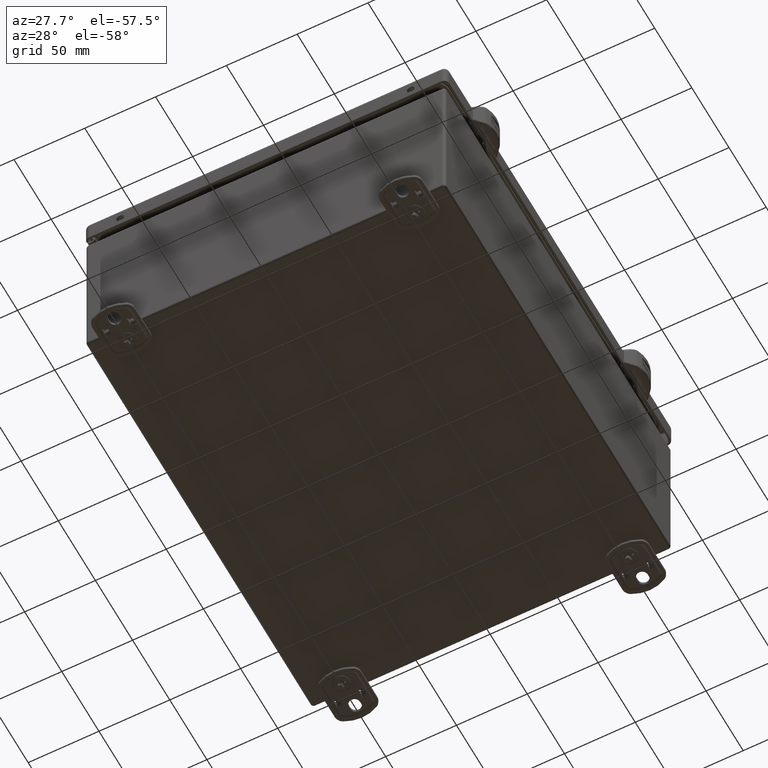
[diagram: clean part render]
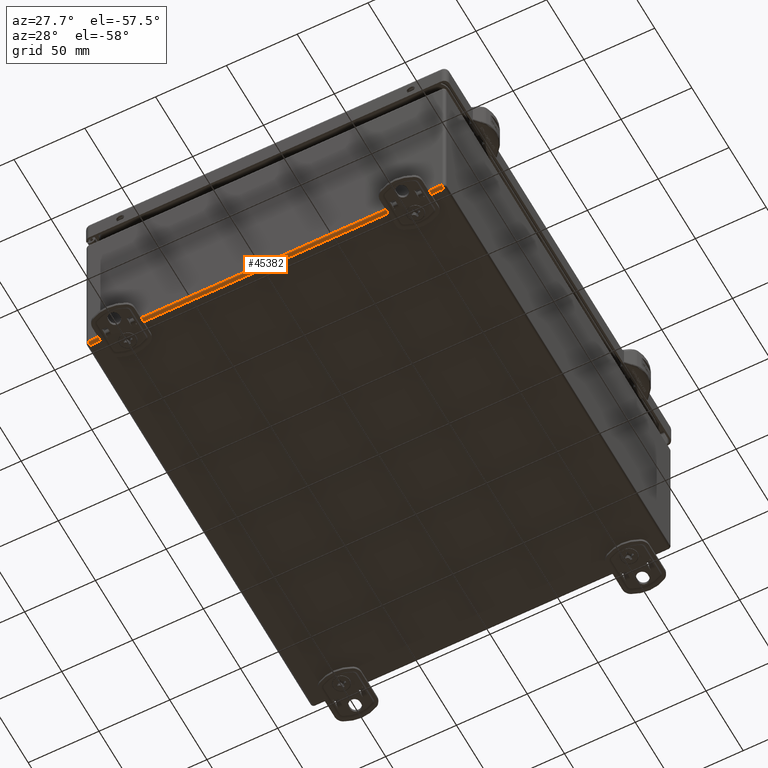
[diagram: same view with one face highlighted and labeled with its STEP entity id]
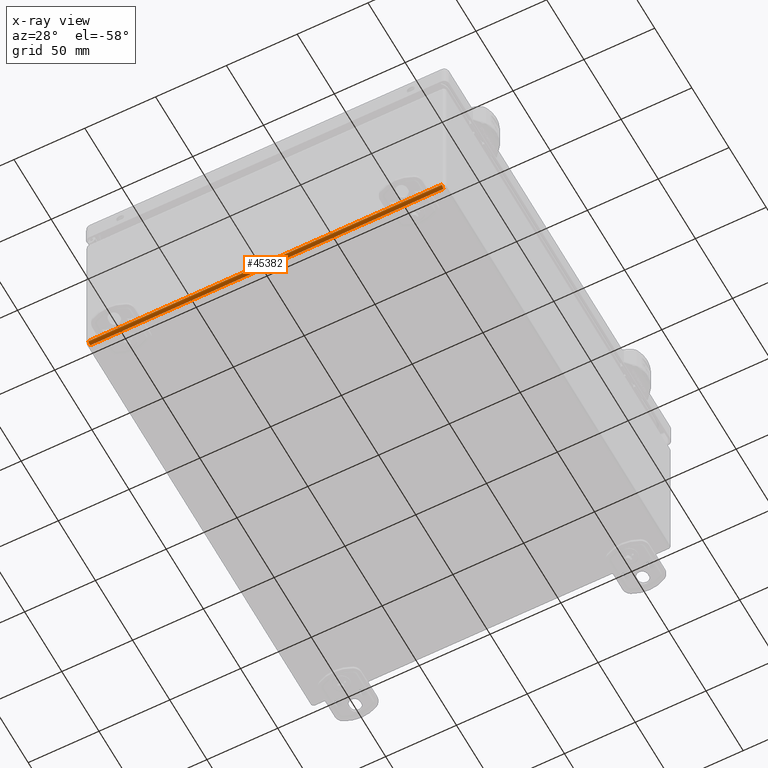
[diagram: x-ray of the same camera — body ghosted, the highlighted face saturated]
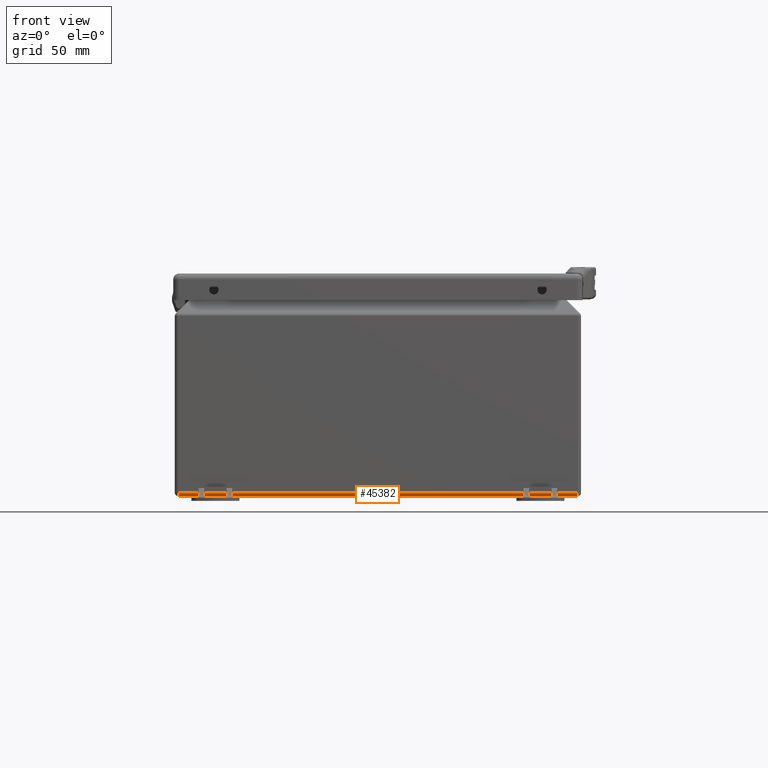
[diagram: same view with one face highlighted and labeled with its STEP entity id]
A machine part, auxiliary view. The second image highlights one B-rep face of the part: STEP entity #45382.
The next image is the same camera in x-ray: the body ghosted, the highlighted face saturated — about 0% of this face is hidden behind the body in this view.
A second angle (front view) of the same face is appended — the face is thin or edge-on in the first view.
In plain terms, the highlighted cylindrical surface (edge-blend (fillet) strip) has radius 2.1336 mm, axis along (-1, 0, 0).
Its self-contained STEP definition (entity closure, byte-faithful):
#4282=FACE_OUTER_BOUND('',#7075,.T.);
#7075=EDGE_LOOP('',(#31259,#31260,#31261,#31262));
#10085=LINE('',#66023,#13943);
#10087=LINE('',#66027,#13945);
#13943=VECTOR('',#53535,0.393700787401575);
#13945=VECTOR('',#53539,0.393700787401575);
#17653=CIRCLE('',#48928,0.084);
#17655=CIRCLE('',#48933,0.0839999999999999);
#19438=VERTEX_POINT('',#66003);
#19441=VERTEX_POINT('',#66014);
#19443=VERTEX_POINT('',#66022);
#19444=VERTEX_POINT('',#66026);
#23933=EDGE_CURVE('',#19441,#19438,#17653,.T.);
#23936=EDGE_CURVE('',#19443,#19438,#10085,.T.);
#23938=EDGE_CURVE('',#19441,#19444,#10087,.T.);
#23939=EDGE_CURVE('',#19444,#19443,#17655,.T.);
#31259=ORIENTED_EDGE('',*,*,#23933,.F.);
#31260=ORIENTED_EDGE('',*,*,#23938,.T.);
#31261=ORIENTED_EDGE('',*,*,#23939,.T.);
#31262=ORIENTED_EDGE('',*,*,#23936,.T.);
#44586=CYLINDRICAL_SURFACE('',#48932,0.084);
#45382=ADVANCED_FACE('',(#4282),#44586,.T.);
#48928=AXIS2_PLACEMENT_3D('',#66016,#53526,#53527);
#48932=AXIS2_PLACEMENT_3D('',#66025,#53537,#53538);
#48933=AXIS2_PLACEMENT_3D('',#66028,#53540,#53541);
#53526=DIRECTION('center_axis',(-1.,0.,0.));
#53527=DIRECTION('ref_axis',(0.,8.32563198069109E-15,-1.));
#53535=DIRECTION('',(-1.,1.16798743743643E-32,0.));
#53537=DIRECTION('center_axis',(-1.,0.,0.));
#53538=DIRECTION('ref_axis',(0.,8.32563198069109E-15,-1.));
#53539=DIRECTION('',(1.,-1.16798743743643E-32,0.));
#53540=DIRECTION('center_axis',(-1.,0.,0.));
#53541=DIRECTION('ref_axis',(0.,0.,-1.));
#66003=CARTESIAN_POINT('',(-4.916,-6.,0.0839999999999999));
#66014=CARTESIAN_POINT('',(-4.916,-5.916,0.));
#66016=CARTESIAN_POINT('Origin',(-4.916,-5.916,0.084));
#66022=CARTESIAN_POINT('',(4.916,-6.,0.0840000000000041));
#66023=CARTESIAN_POINT('',(2.88988878668616E-17,-6.,0.0839999999999999));
#66025=CARTESIAN_POINT('Origin',(2.458,-5.916,0.084));
#66026=CARTESIAN_POINT('',(4.916,-5.916,0.));
#66027=CARTESIAN_POINT('',(2.88988878668616E-17,-5.916,0.));
#66028=CARTESIAN_POINT('Origin',(4.916,-5.916,0.0839999999999999));